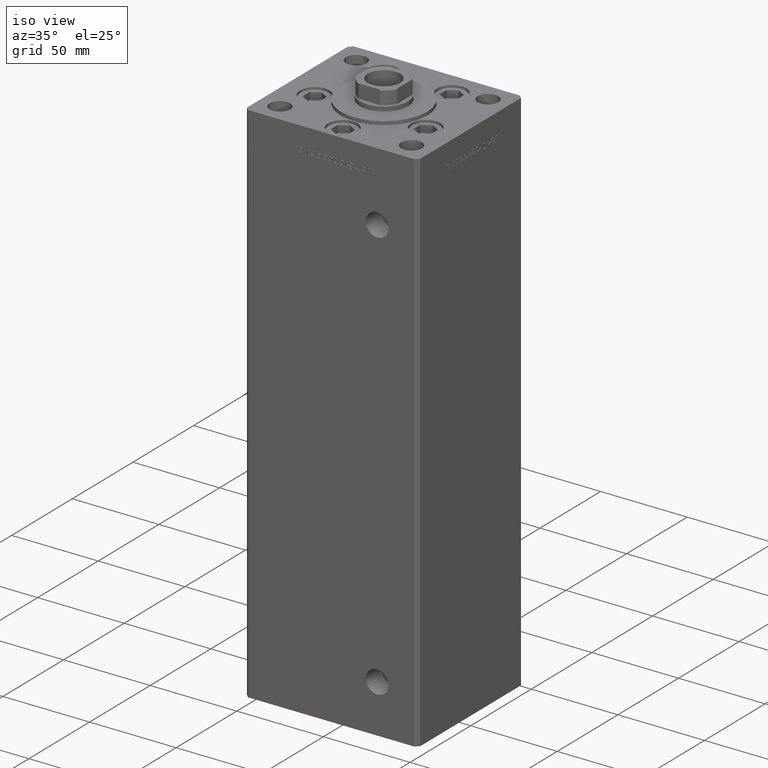
[diagram: clean part render]
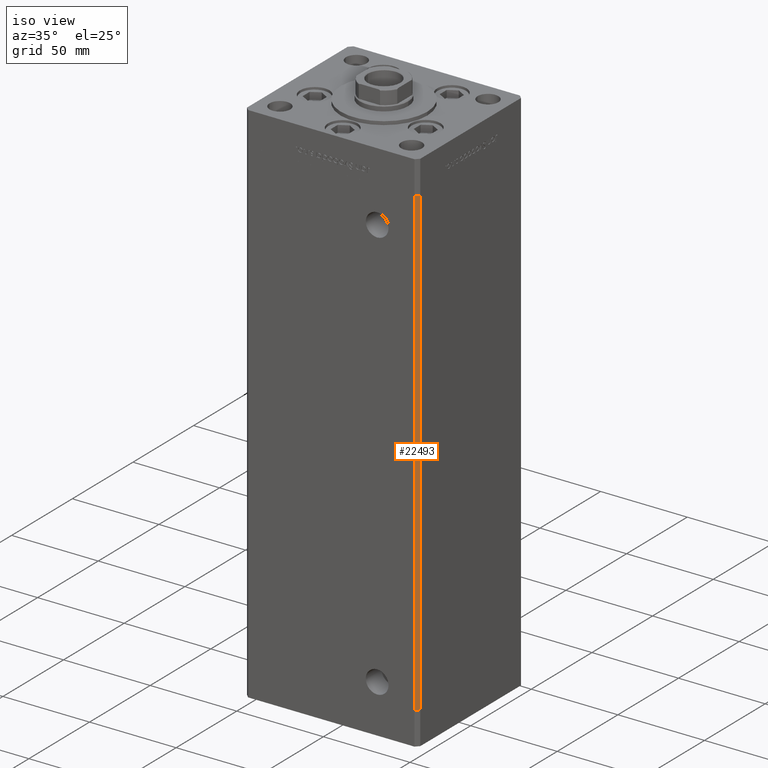
[diagram: same view with one face highlighted and labeled with its STEP entity id]
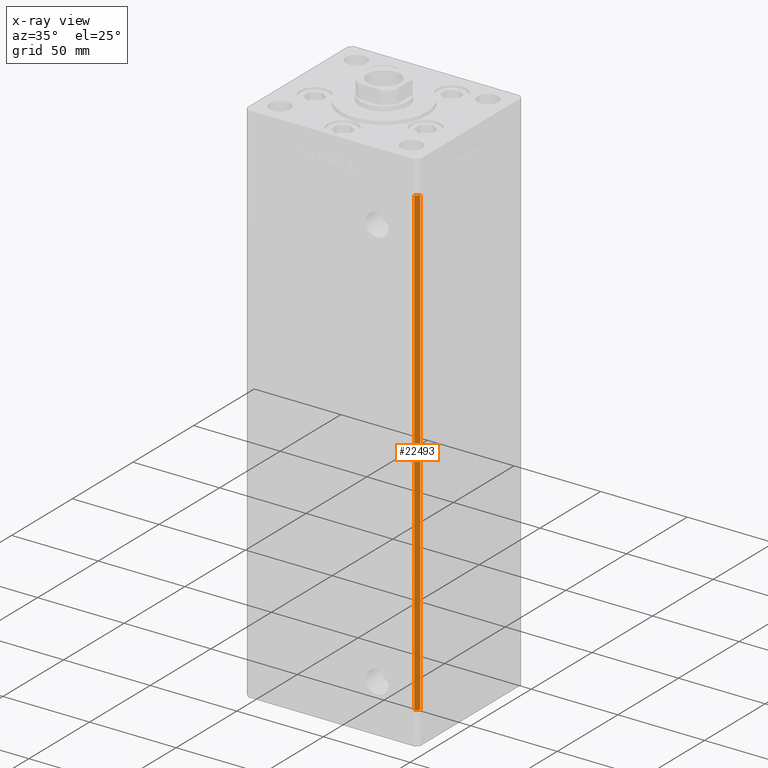
[diagram: x-ray of the same camera — body ghosted, the highlighted face saturated]
A machine part, iso view. The second image highlights one B-rep face of the part: STEP entity #22493.
The next image is the same camera in x-ray: the body ghosted, the highlighted face saturated — about 0% of this face is hidden behind the body in this view.
In plain terms, the highlighted planar face has unit normal (0.7071, -0.7071, 0).
Its self-contained STEP definition (entity closure, byte-faithful):
#580 = PLANE ( 'NONE',  #14895 ) ;
#771 = DIRECTION ( 'NONE',  ( -0.7071067811865474617, -0.7071067811865474617, 0.000000000000000000 ) ) ;
#3149 = DIRECTION ( 'NONE',  ( -0.000000000000000000, -0.000000000000000000, -1.000000000000000000 ) ) ;
#5255 = LINE ( 'NONE', #34010, #18960 ) ;
#5316 = CARTESIAN_POINT ( 'NONE',  ( 47.99999999999998579, -43.50000000000000000, 0.000000000000000000 ) ) ;
#6543 = CARTESIAN_POINT ( 'NONE',  ( 47.99999999999998579, -43.50000000000000000, 268.5000000000000000 ) ) ;
#11115 = LINE ( 'NONE', #16105, #41854 ) ;
#11898 = VECTOR ( 'NONE', #3149, 1000.000000000000000 ) ;
#12284 = VECTOR ( 'NONE', #48681, 1000.000000000000114 ) ;
#13199 = EDGE_CURVE ( 'NONE', #45058, #47044, #37331, .T. ) ;
#14895 = AXIS2_PLACEMENT_3D ( 'NONE', #21150, #24844, #33040 ) ;
#15724 = ORIENTED_EDGE ( 'NONE', *, *, #13199, .T. ) ;
#16105 = CARTESIAN_POINT ( 'NONE',  ( 49.99999999999998579, -41.49999999999999289, 268.5000000000000000 ) ) ;
#16935 = FACE_OUTER_BOUND ( 'NONE', #30347, .T. ) ;
#18241 = EDGE_CURVE ( 'NONE', #31278, #29342, #5255, .T. ) ;
#18960 = VECTOR ( 'NONE', #771, 1000.000000000000114 ) ;
#21150 = CARTESIAN_POINT ( 'NONE',  ( 49.99999999999998579, -41.49999999999999289, 268.5000000000000000 ) ) ;
#22493 = ADVANCED_FACE ( 'NONE', ( #16935 ), #580, .T. ) ;
#22706 = EDGE_CURVE ( 'NONE', #45058, #31278, #11115, .T. ) ;
#24844 = DIRECTION ( 'NONE',  ( 0.7071067811865475727, -0.7071067811865475727, 0.000000000000000000 ) ) ;
#27280 = CARTESIAN_POINT ( 'NONE',  ( 49.99999999999998579, -41.49999999999999289, 268.5000000000000000 ) ) ;
#27446 = CARTESIAN_POINT ( 'NONE',  ( 47.99999999999998579, -43.50000000000000000, 268.5000000000000000 ) ) ;
#29342 = VERTEX_POINT ( 'NONE', #5316 ) ;
#30347 = EDGE_LOOP ( 'NONE', ( #34086, #35125, #15724, #36541 ) ) ;
#31278 = VERTEX_POINT ( 'NONE', #35327 ) ;
#31685 = DIRECTION ( 'NONE',  ( -0.000000000000000000, -0.000000000000000000, -1.000000000000000000 ) ) ;
#33040 = DIRECTION ( 'NONE',  ( 0.7071067811865474617, 0.7071067811865474617, 0.000000000000000000 ) ) ;
#34010 = CARTESIAN_POINT ( 'NONE',  ( 49.99999999999998579, -41.49999999999999289, 0.000000000000000000 ) ) ;
#34086 = ORIENTED_EDGE ( 'NONE', *, *, #18241, .F. ) ;
#35125 = ORIENTED_EDGE ( 'NONE', *, *, #22706, .F. ) ;
#35327 = CARTESIAN_POINT ( 'NONE',  ( 49.99999999999998579, -41.49999999999999289, 0.000000000000000000 ) ) ;
#36541 = ORIENTED_EDGE ( 'NONE', *, *, #41666, .T. ) ;
#37331 = LINE ( 'NONE', #44468, #12284 ) ;
#41666 = EDGE_CURVE ( 'NONE', #47044, #29342, #47219, .T. ) ;
#41854 = VECTOR ( 'NONE', #31685, 1000.000000000000000 ) ;
#44468 = CARTESIAN_POINT ( 'NONE',  ( 49.99999999999998579, -41.49999999999999289, 268.5000000000000000 ) ) ;
#45058 = VERTEX_POINT ( 'NONE', #27280 ) ;
#47044 = VERTEX_POINT ( 'NONE', #6543 ) ;
#47219 = LINE ( 'NONE', #27446, #11898 ) ;
#48681 = DIRECTION ( 'NONE',  ( -0.7071067811865474617, -0.7071067811865474617, 0.000000000000000000 ) ) ;